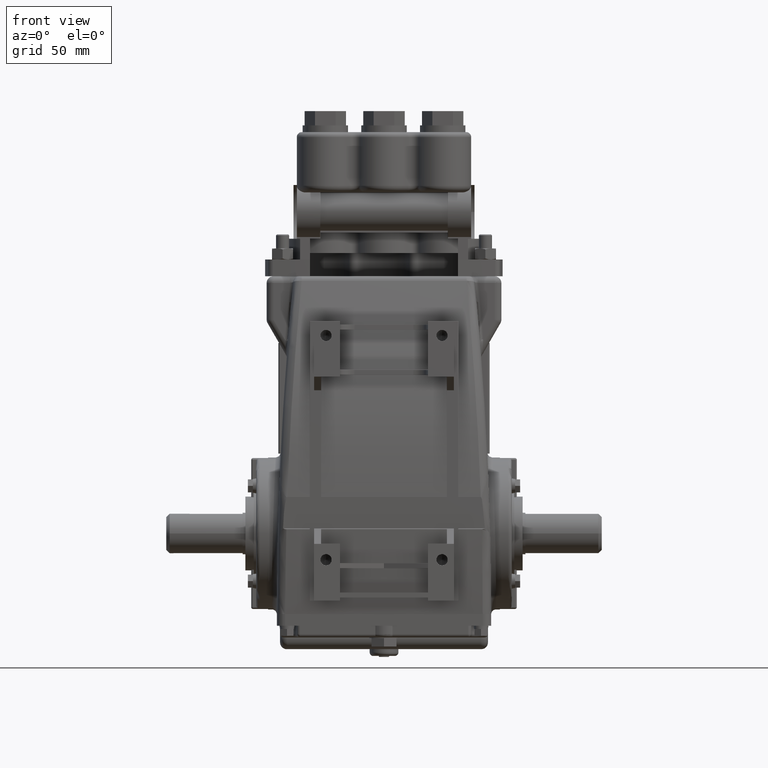
[diagram: clean part render]
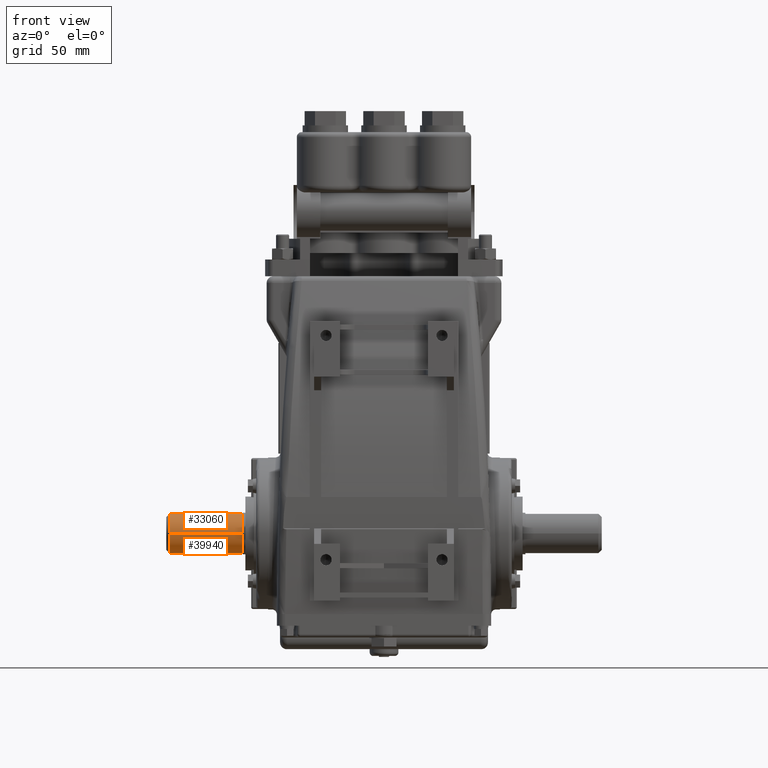
[diagram: same view with one multi-face feature highlighted, each face labeled with its STEP entity id]
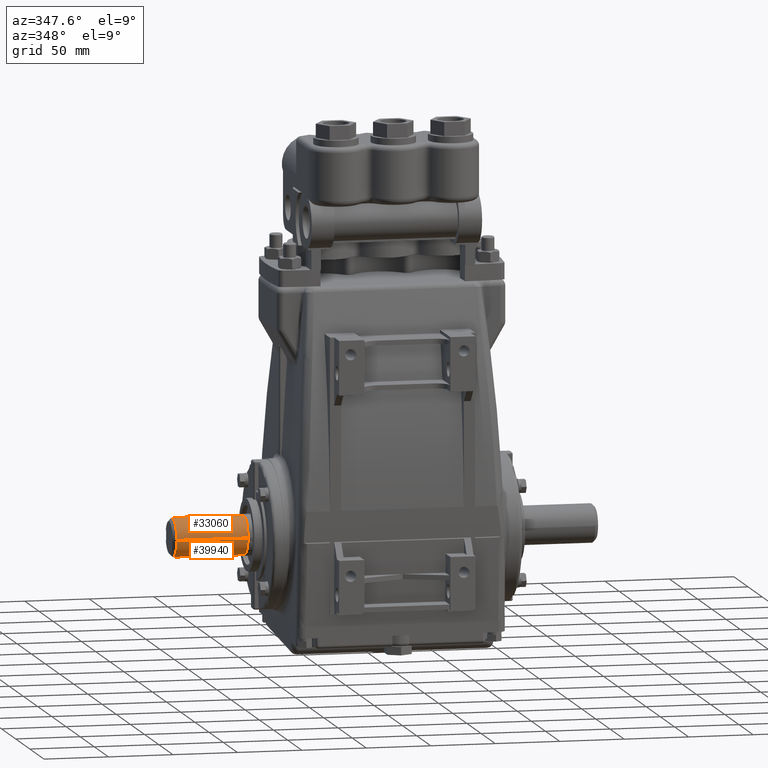
[diagram: same view with one multi-face feature highlighted, each face labeled with its STEP entity id]
A machine part, front view. The highlighted faces form ONE feature: a constant-radius fillet chain: 2 tangent blend faces with common blend radius 15 mm. The faces share edges in the B-rep.
A second angle (auxiliary view) of the same feature is appended — it is thin or edge-on in the first view.
Their STEP definitions:
[1] entity #33060 (Cylinder):
#24793 = CARTESIAN_POINT ( 'NONE',  ( -6.394999999999997800, -0.5905511811023607100, 7.231927286352604300E-017 ) ) ;
#24794 = CARTESIAN_POINT ( 'NONE',  ( -6.394999999999997800, 0.5691611788425079400, 0.1575000000000000000 ) ) ;
#24894 = FACE_OUTER_BOUND ( 'NONE', #33059, .T. ) ;
#24895 = DIRECTION ( 'NONE',  ( 0.0000000000000000000, -1.000000000000000000, 0.0000000000000000000 ) ) ;
#24896 = DIRECTION ( 'NONE',  ( 1.000000000000000000, -8.149344013175659900E-018, -0.0000000000000000000 ) ) ;
#24897 = CARTESIAN_POINT ( 'NONE',  ( -6.394999999999997800, -7.770806983763612400E-018, 0.0000000000000000000 ) ) ;
#24898 = AXIS2_PLACEMENT_3D ( 'NONE', #24897, #24896, #24895 ) ;
#24899 = CIRCLE ( 'NONE', #24898, 0.5905511811023607100 ) ;
#24907 = DIRECTION ( 'NONE',  ( 1.000000000000000000, -8.149344013175607500E-018, -0.0000000000000000000 ) ) ;
#24908 = VECTOR ( 'NONE', #24907, 39.37007874015748100 ) ;
#24909 = CARTESIAN_POINT ( 'NONE',  ( 6.495000000000001900, -0.5905511811023609300, 7.231927286352604300E-017 ) ) ;
#24910 = LINE ( 'NONE', #24909, #24908 ) ;
#24914 = CARTESIAN_POINT ( 'NONE',  ( -4.214999999999999000, -0.5905511811023610400, 7.231927286352608000E-017 ) ) ;
#24963 = DIRECTION ( 'NONE',  ( 0.0000000000000000000, 1.000000000000000000, 0.0000000000000000000 ) ) ;
#24964 = DIRECTION ( 'NONE',  ( 1.000000000000000000, -8.149344013175607500E-018, -0.0000000000000000000 ) ) ;
#24965 = CARTESIAN_POINT ( 'NONE',  ( 6.495000000000001900, -1.128158513135971900E-016, 0.0000000000000000000 ) ) ;
#24966 = AXIS2_PLACEMENT_3D ( 'NONE', #24965, #24964, #24963 ) ;
#24974 = CYLINDRICAL_SURFACE ( 'NONE', #24966, 0.5905511811023607100 ) ;
#28484 = CIRCLE ( 'NONE', #28495, 0.5905511811023609300 ) ;
#28487 = CARTESIAN_POINT ( 'NONE',  ( -4.319556681043240900, 0.5691611788425078300, 0.1575000000000000000 ) ) ;
#28488 = CARTESIAN_POINT ( 'NONE',  ( -4.315435175066618900, 0.5762577382802900300, 0.1318550086645465500 ) ) ;
#28489 = CARTESIAN_POINT ( 'NONE',  ( -4.312722868472857100, 0.5815845270586426100, 0.1058878731562892000 ) ) ;
#28490 = CARTESIAN_POINT ( 'NONE',  ( -4.309169668379733600, 0.5887305553390938000, 0.05337730796611637300 ) ) ;
#28491 = CARTESIAN_POINT ( 'NONE',  ( -4.308335838508730500, 0.5905511811023607100, 0.02683357959348691900 ) ) ;
#28492 = CARTESIAN_POINT ( 'NONE',  ( -4.308335838508730500, 0.5905511811023607100, -5.254366005327682800E-020 ) ) ;
#28495 = AXIS2_PLACEMENT_3D ( 'NONE', #28587, #28586, #28585 ) ;
#28497 = CARTESIAN_POINT ( 'NONE',  ( -4.308335838508730500, 0.5905511811023607100, -5.254366005327682800E-020 ) ) ;
#28498 = B_SPLINE_CURVE_WITH_KNOTS ( 'NONE', 3,
 ( #28492, #28491, #28490, #28489, #28488, #28487 ),
 .UNSPECIFIED., .F., .F.,
 ( 4, 2, 4 ),
 ( 0.02875928330529911200, 0.03078077694800262400, 0.03280227059070613800 ),
 .UNSPECIFIED. ) ;
#28501 = CARTESIAN_POINT ( 'NONE',  ( -4.319556681043240900, 0.5691611788425078300, 0.1575000000000000000 ) ) ;
#28502 = DIRECTION ( 'NONE',  ( 1.000000000000000000, -8.149344013175607500E-018, -0.0000000000000000000 ) ) ;
#28504 = VECTOR ( 'NONE', #28502, 39.37007874015748100 ) ;
#28505 = CARTESIAN_POINT ( 'NONE',  ( 6.495000000000001900, 0.5691611788425078300, 0.1575000000000000000 ) ) ;
#28506 = LINE ( 'NONE', #28505, #28504 ) ;
#28577 = CARTESIAN_POINT ( 'NONE',  ( -4.214999999999999000, 0.5905511811023609300, 0.0000000000000000000 ) ) ;
#28578 = DIRECTION ( 'NONE',  ( 1.000000000000000000, -8.149344013175607500E-018, -0.0000000000000000000 ) ) ;
#28579 = VECTOR ( 'NONE', #28578, 39.37007874015748100 ) ;
#28581 = CARTESIAN_POINT ( 'NONE',  ( 6.495000000000001900, 0.5905511811023606000, 0.0000000000000000000 ) ) ;
#28585 = DIRECTION ( 'NONE',  ( 0.0000000000000000000, 1.000000000000000000, 0.0000000000000000000 ) ) ;
#28586 = DIRECTION ( 'NONE',  ( 1.000000000000000000, -8.149344013175607500E-018, -0.0000000000000000000 ) ) ;
#28587 = CARTESIAN_POINT ( 'NONE',  ( -4.214999999999999000, -2.553637693248642100E-017, 0.0000000000000000000 ) ) ;
#28588 = LINE ( 'NONE', #28581, #28579 ) ;
#33052 = VERTEX_POINT ( 'NONE', #24794 ) ;
#33053 = VERTEX_POINT ( 'NONE', #24793 ) ;
#33054 = ORIENTED_EDGE ( 'NONE', *, *, #33056, .T. ) ;
#33055 = VERTEX_POINT ( 'NONE', #24914 ) ;
#33056 = EDGE_CURVE ( 'NONE', #33053, #33055, #24910, .T. ) ;
#33057 = EDGE_CURVE ( 'NONE', #33052, #33053, #24899, .T. ) ;
#33058 = ORIENTED_EDGE ( 'NONE', *, *, #33057, .T. ) ;
#33059 = EDGE_LOOP ( 'NONE', ( #33058, #33054, #47232, #47229, #47236, #47227 ) ) ;
#33060 = ADVANCED_FACE ( 'NONE', ( #24894 ), #24974, .T. ) ;
#47225 = EDGE_CURVE ( 'NONE', #33052, #47226, #28506, .T. ) ;
#47226 = VERTEX_POINT ( 'NONE', #28501 ) ;
#47227 = ORIENTED_EDGE ( 'NONE', *, *, #47225, .F. ) ;
#47228 = EDGE_CURVE ( 'NONE', #47231, #47226, #28498, .T. ) ;
#47229 = ORIENTED_EDGE ( 'NONE', *, *, #47234, .F. ) ;
#47231 = VERTEX_POINT ( 'NONE', #28497 ) ;
#47232 = ORIENTED_EDGE ( 'NONE', *, *, #47233, .F. ) ;
#47233 = EDGE_CURVE ( 'NONE', #47235, #33055, #28484, .T. ) ;
#47234 = EDGE_CURVE ( 'NONE', #47231, #47235, #28588, .T. ) ;
#47235 = VERTEX_POINT ( 'NONE', #28577 ) ;
#47236 = ORIENTED_EDGE ( 'NONE', *, *, #47228, .T. ) ;
[2] entity #39940 (Cylinder):
#24793 = CARTESIAN_POINT ( 'NONE',  ( -6.394999999999997800, -0.5905511811023607100, 7.231927286352604300E-017 ) ) ;
#24907 = DIRECTION ( 'NONE',  ( 1.000000000000000000, -8.149344013175607500E-018, -0.0000000000000000000 ) ) ;
#24908 = VECTOR ( 'NONE', #24907, 39.37007874015748100 ) ;
#24909 = CARTESIAN_POINT ( 'NONE',  ( 6.495000000000001900, -0.5905511811023609300, 7.231927286352604300E-017 ) ) ;
#24910 = LINE ( 'NONE', #24909, #24908 ) ;
#24914 = CARTESIAN_POINT ( 'NONE',  ( -4.214999999999999000, -0.5905511811023610400, 7.231927286352608000E-017 ) ) ;
#25038 = DIRECTION ( 'NONE',  ( 0.0000000000000000000, 1.000000000000000000, 0.0000000000000000000 ) ) ;
#25040 = DIRECTION ( 'NONE',  ( 1.000000000000000000, -8.149344013175607500E-018, -0.0000000000000000000 ) ) ;
#25041 = CARTESIAN_POINT ( 'NONE',  ( -4.214999999999999000, -2.553637693248642100E-017, 0.0000000000000000000 ) ) ;
#25042 = AXIS2_PLACEMENT_3D ( 'NONE', #25041, #25040, #25038 ) ;
#25043 = CIRCLE ( 'NONE', #25042, 0.5905511811023609300 ) ;
#25111 = CARTESIAN_POINT ( 'NONE',  ( -4.308335838508730500, 0.5905511811023607100, -5.254366005327682800E-020 ) ) ;
#25113 = CARTESIAN_POINT ( 'NONE',  ( -4.308335838508733100, 0.5905511811023608200, -0.01341294731641156300 ) ) ;
#25115 = CARTESIAN_POINT ( 'NONE',  ( -4.308551272158784000, 0.5900905120320532000, -0.02686881113180526400 ) ) ;
#25118 = CARTESIAN_POINT ( 'NONE',  ( -4.309418283595443100, 0.5882747230353350100, -0.05349388413255341800 ) ) ;
#25119 = CARTESIAN_POINT ( 'NONE',  ( -4.310069551702242500, 0.5869202381673269700, -0.06671535339085854500 ) ) ;
#25120 = CARTESIAN_POINT ( 'NONE',  ( -4.312742955989447700, 0.5815451692130928500, -0.1061053300007663000 ) ) ;
#25121 = CARTESIAN_POINT ( 'NONE',  ( -4.315458847481174600, 0.5762169782528090400, -0.1320023040632181100 ) ) ;
#25122 = CARTESIAN_POINT ( 'NONE',  ( -4.319556681043240900, 0.5691611788425078300, -0.1575000000000000000 ) ) ;
#25134 = B_SPLINE_CURVE_WITH_KNOTS ( 'NONE', 3,
 ( #25122, #25121, #25120, #25119, #25118, #25115, #25113, #25111 ),
 .UNSPECIFIED., .F., .F.,
 ( 4, 2, 2, 4 ),
 ( 0.02471745390485278700, 0.02673836860507595000, 0.02774882595518753100, 0.02875928330529911200 ),
 .UNSPECIFIED. ) ;
#25139 = DIRECTION ( 'NONE',  ( 0.0000000000000000000, -1.000000000000000000, 0.0000000000000000000 ) ) ;
#25140 = DIRECTION ( 'NONE',  ( 1.000000000000000000, -8.149344013175659900E-018, -0.0000000000000000000 ) ) ;
#25142 = CARTESIAN_POINT ( 'NONE',  ( -6.394999999999997800, -7.770806983763612400E-018, 0.0000000000000000000 ) ) ;
#25143 = AXIS2_PLACEMENT_3D ( 'NONE', #25142, #25140, #25139 ) ;
#25144 = CIRCLE ( 'NONE', #25143, 0.5905511811023607100 ) ;
#25149 = CARTESIAN_POINT ( 'NONE',  ( -6.394999999999997800, 0.5691611788425079400, -0.1575000000000000000 ) ) ;
#25150 = CARTESIAN_POINT ( 'NONE',  ( -4.319556681043240900, 0.5691611788425078300, -0.1575000000000000000 ) ) ;
#25151 = DIRECTION ( 'NONE',  ( 1.000000000000000000, -8.149344013175607500E-018, -0.0000000000000000000 ) ) ;
#25153 = VECTOR ( 'NONE', #25151, 39.37007874015748100 ) ;
#25155 = CARTESIAN_POINT ( 'NONE',  ( 6.495000000000001900, 0.5691611788425078300, -0.1575000000000000000 ) ) ;
#25157 = LINE ( 'NONE', #25155, #25153 ) ;
#25549 = FACE_OUTER_BOUND ( 'NONE', #39939, .T. ) ;
#25614 = DIRECTION ( 'NONE',  ( 0.0000000000000000000, 1.000000000000000000, 0.0000000000000000000 ) ) ;
#25615 = DIRECTION ( 'NONE',  ( 1.000000000000000000, -8.149344013175607500E-018, -0.0000000000000000000 ) ) ;
#25617 = CARTESIAN_POINT ( 'NONE',  ( 6.495000000000001900, -1.128158513135971900E-016, 0.0000000000000000000 ) ) ;
#25618 = AXIS2_PLACEMENT_3D ( 'NONE', #25617, #25615, #25614 ) ;
#25624 = CYLINDRICAL_SURFACE ( 'NONE', #25618, 0.5905511811023607100 ) ;
#28497 = CARTESIAN_POINT ( 'NONE',  ( -4.308335838508730500, 0.5905511811023607100, -5.254366005327682800E-020 ) ) ;
#28577 = CARTESIAN_POINT ( 'NONE',  ( -4.214999999999999000, 0.5905511811023609300, 0.0000000000000000000 ) ) ;
#28578 = DIRECTION ( 'NONE',  ( 1.000000000000000000, -8.149344013175607500E-018, -0.0000000000000000000 ) ) ;
#28579 = VECTOR ( 'NONE', #28578, 39.37007874015748100 ) ;
#28581 = CARTESIAN_POINT ( 'NONE',  ( 6.495000000000001900, 0.5905511811023606000, 0.0000000000000000000 ) ) ;
#28588 = LINE ( 'NONE', #28581, #28579 ) ;
#33053 = VERTEX_POINT ( 'NONE', #24793 ) ;
#33055 = VERTEX_POINT ( 'NONE', #24914 ) ;
#33056 = EDGE_CURVE ( 'NONE', #33053, #33055, #24910, .T. ) ;
#39802 = ORIENTED_EDGE ( 'NONE', *, *, #39804, .F. ) ;
#39804 = EDGE_CURVE ( 'NONE', #33055, #47235, #25043, .T. ) ;
#39807 = ORIENTED_EDGE ( 'NONE', *, *, #47234, .T. ) ;
#39808 = EDGE_CURVE ( 'NONE', #39810, #39809, #25157, .T. ) ;
#39809 = VERTEX_POINT ( 'NONE', #25150 ) ;
#39810 = VERTEX_POINT ( 'NONE', #25149 ) ;
#39811 = ORIENTED_EDGE ( 'NONE', *, *, #39808, .T. ) ;
#39812 = EDGE_CURVE ( 'NONE', #33053, #39810, #25144, .T. ) ;
#39813 = EDGE_CURVE ( 'NONE', #39809, #47231, #25134, .T. ) ;
#39814 = ORIENTED_EDGE ( 'NONE', *, *, #39813, .T. ) ;
#39816 = ORIENTED_EDGE ( 'NONE', *, *, #39812, .T. ) ;
#39937 = ORIENTED_EDGE ( 'NONE', *, *, #33056, .F. ) ;
#39939 = EDGE_LOOP ( 'NONE', ( #39937, #39816, #39811, #39814, #39807, #39802 ) ) ;
#39940 = ADVANCED_FACE ( 'NONE', ( #25549 ), #25624, .T. ) ;
#47231 = VERTEX_POINT ( 'NONE', #28497 ) ;
#47234 = EDGE_CURVE ( 'NONE', #47231, #47235, #28588, .T. ) ;
#47235 = VERTEX_POINT ( 'NONE', #28577 ) ;